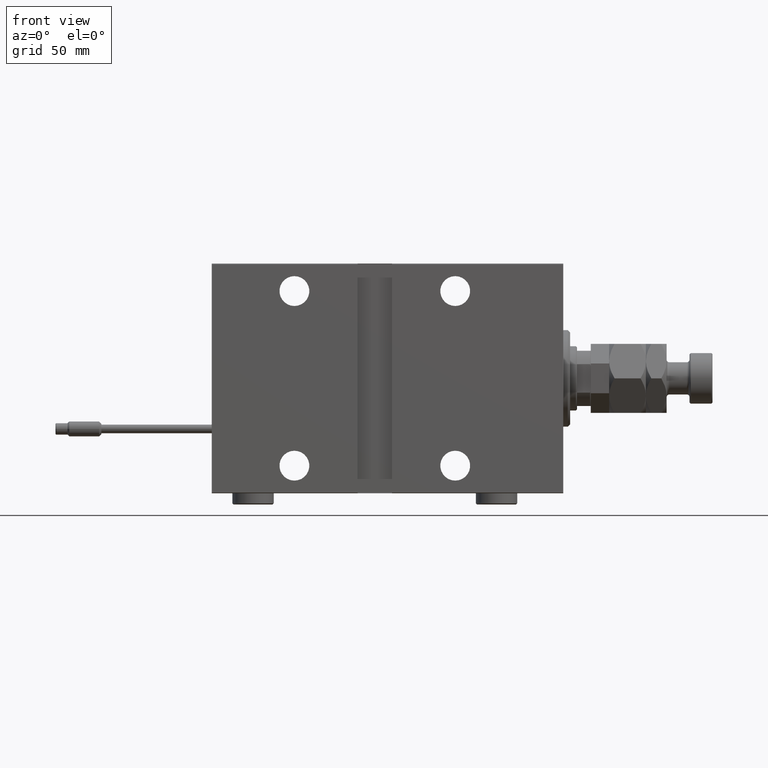
[diagram: clean part render]
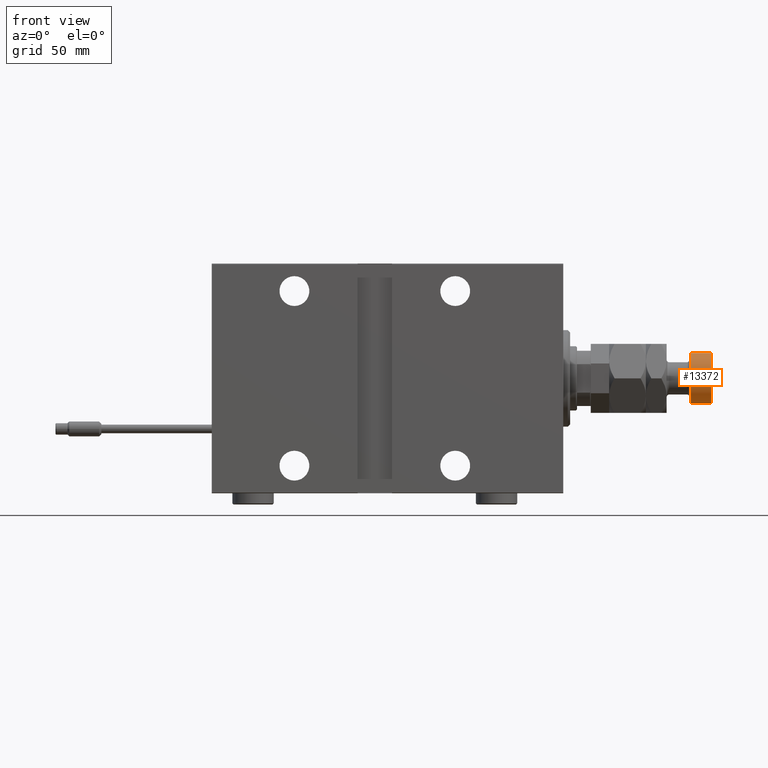
[diagram: same view with one face highlighted and labeled with its STEP entity id]
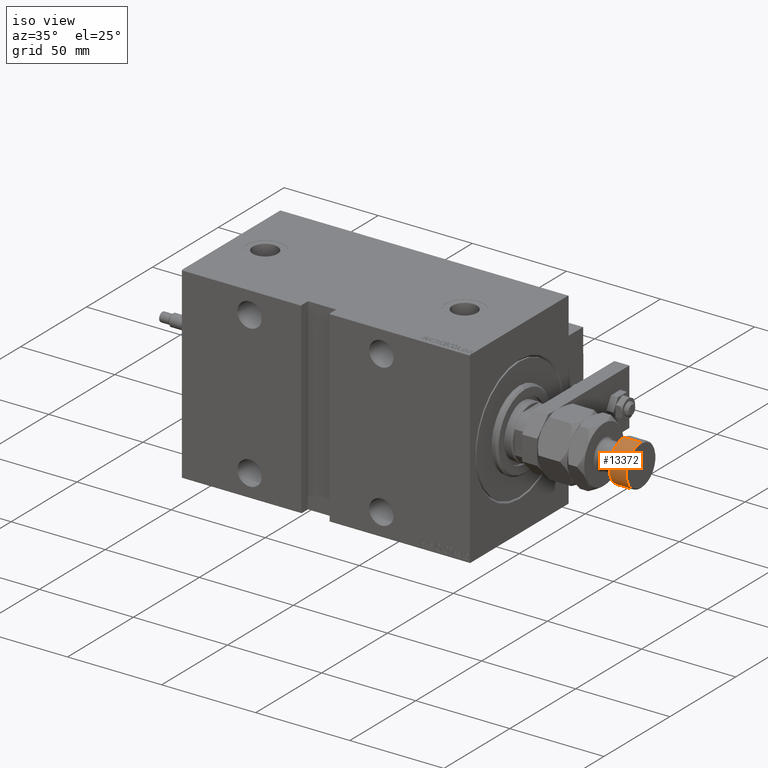
[diagram: same view with one face highlighted and labeled with its STEP entity id]
A machine part, front view. The second image highlights one B-rep face of the part: STEP entity #13372.
A second angle (iso view) of the same face is appended — the face is thin or edge-on in the first view.
In plain terms, the highlighted cylindrical surface (edge-blend (fillet) strip) has radius 11 mm, axis along (-1, -0, 0).
Its self-contained STEP definition (entity closure, byte-faithful):
#6382 = ORIENTED_EDGE ( 'NONE', *, *, #9181, .T. ) ;
#8069 = LINE ( 'NONE', #40944, #44700 ) ;
#8382 = AXIS2_PLACEMENT_3D ( 'NONE', #10476, #40134, #32046 ) ;
#8450 = CARTESIAN_POINT ( 'NONE',  ( 11.00000000000000000, 1.347111479062088405E-15, 35.50000000000001421 ) ) ;
#8774 = EDGE_CURVE ( 'NONE', #23616, #16793, #22686, .T. ) ;
#9181 = EDGE_CURVE ( 'NONE', #23616, #21687, #16453, .T. ) ;
#9573 = DIRECTION ( 'NONE',  ( 1.000000000000000000, 0.000000000000000000, 0.000000000000000000 ) ) ;
#10476 = CARTESIAN_POINT ( 'NONE',  ( 0.000000000000000000, 0.000000000000000000, 35.50000000000001421 ) ) ;
#11395 = DIRECTION ( 'NONE',  ( -1.000000000000000000, 0.000000000000000000, 0.000000000000000000 ) ) ;
#12234 = VERTEX_POINT ( 'NONE', #48432 ) ;
#12415 = CARTESIAN_POINT ( 'NONE',  ( 11.00000000000000000, 1.347111479062088405E-15, 44.50000000000001421 ) ) ;
#13372 = ADVANCED_FACE ( 'NONE', ( #15431 ), #51840, .T. ) ;
#15431 = FACE_OUTER_BOUND ( 'NONE', #17752, .T. ) ;
#16453 = CIRCLE ( 'NONE', #46598, 11.00000000000000000 ) ;
#16793 = VERTEX_POINT ( 'NONE', #8450 ) ;
#17752 = EDGE_LOOP ( 'NONE', ( #22840, #6382, #46076, #30854 ) ) ;
#21687 = VERTEX_POINT ( 'NONE', #34976 ) ;
#22227 = CARTESIAN_POINT ( 'NONE',  ( 0.000000000000000000, 0.000000000000000000, 44.50000000000001421 ) ) ;
#22686 = LINE ( 'NONE', #48559, #31081 ) ;
#22840 = ORIENTED_EDGE ( 'NONE', *, *, #8774, .F. ) ;
#22996 = EDGE_CURVE ( 'NONE', #12234, #16793, #31628, .T. ) ;
#23616 = VERTEX_POINT ( 'NONE', #12415 ) ;
#26549 = DIRECTION ( 'NONE',  ( 0.000000000000000000, 0.000000000000000000, -1.000000000000000000 ) ) ;
#27824 = DIRECTION ( 'NONE',  ( -0.000000000000000000, -0.000000000000000000, -1.000000000000000000 ) ) ;
#28683 = AXIS2_PLACEMENT_3D ( 'NONE', #31344, #47798, #11395 ) ;
#30817 = EDGE_CURVE ( 'NONE', #21687, #12234, #8069, .T. ) ;
#30854 = ORIENTED_EDGE ( 'NONE', *, *, #22996, .T. ) ;
#31081 = VECTOR ( 'NONE', #27824, 1000.000000000000000 ) ;
#31344 = CARTESIAN_POINT ( 'NONE',  ( 0.000000000000000000, 0.000000000000000000, 45.00000000000000711 ) ) ;
#31628 = CIRCLE ( 'NONE', #8382, 11.00000000000000000 ) ;
#32046 = DIRECTION ( 'NONE',  ( 1.000000000000000000, 0.000000000000000000, 0.000000000000000000 ) ) ;
#34976 = CARTESIAN_POINT ( 'NONE',  ( -11.00000000000000000, 0.000000000000000000, 44.50000000000001421 ) ) ;
#40134 = DIRECTION ( 'NONE',  ( -0.000000000000000000, -0.000000000000000000, 1.000000000000000000 ) ) ;
#40944 = CARTESIAN_POINT ( 'NONE',  ( -11.00000000000000000, 0.000000000000000000, 45.00000000000000711 ) ) ;
#44475 = DIRECTION ( 'NONE',  ( -0.000000000000000000, -0.000000000000000000, -1.000000000000000000 ) ) ;
#44700 = VECTOR ( 'NONE', #44475, 1000.000000000000000 ) ;
#46076 = ORIENTED_EDGE ( 'NONE', *, *, #30817, .T. ) ;
#46598 = AXIS2_PLACEMENT_3D ( 'NONE', #22227, #26549, #9573 ) ;
#47798 = DIRECTION ( 'NONE',  ( -0.000000000000000000, -0.000000000000000000, -1.000000000000000000 ) ) ;
#48432 = CARTESIAN_POINT ( 'NONE',  ( -11.00000000000000000, 0.000000000000000000, 35.50000000000001421 ) ) ;
#48559 = CARTESIAN_POINT ( 'NONE',  ( 11.00000000000000000, 1.347111479062088405E-15, 45.00000000000000711 ) ) ;
#51840 = CYLINDRICAL_SURFACE ( 'NONE', #28683, 11.00000000000000000 ) ;